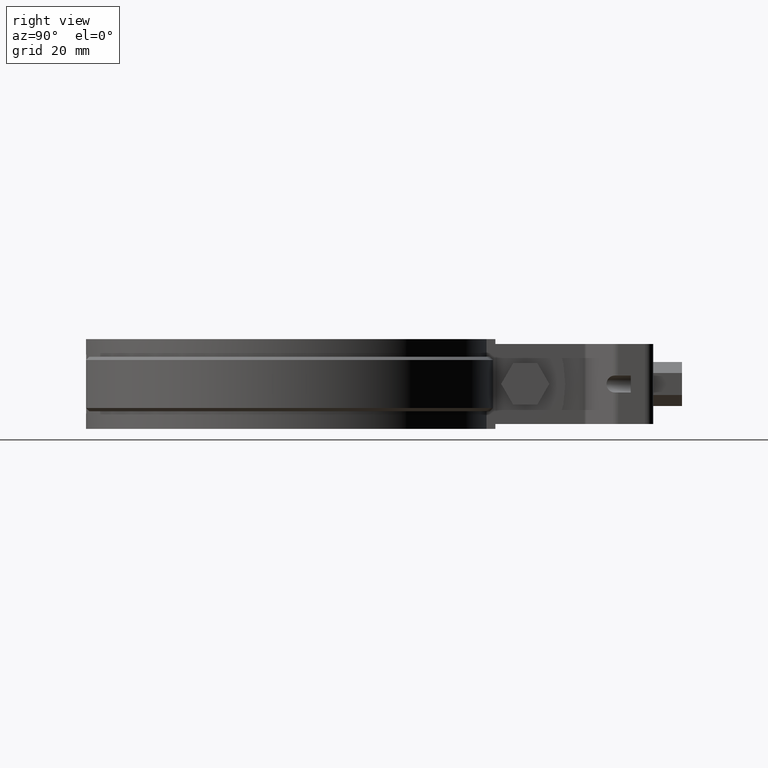
[diagram: clean part render]
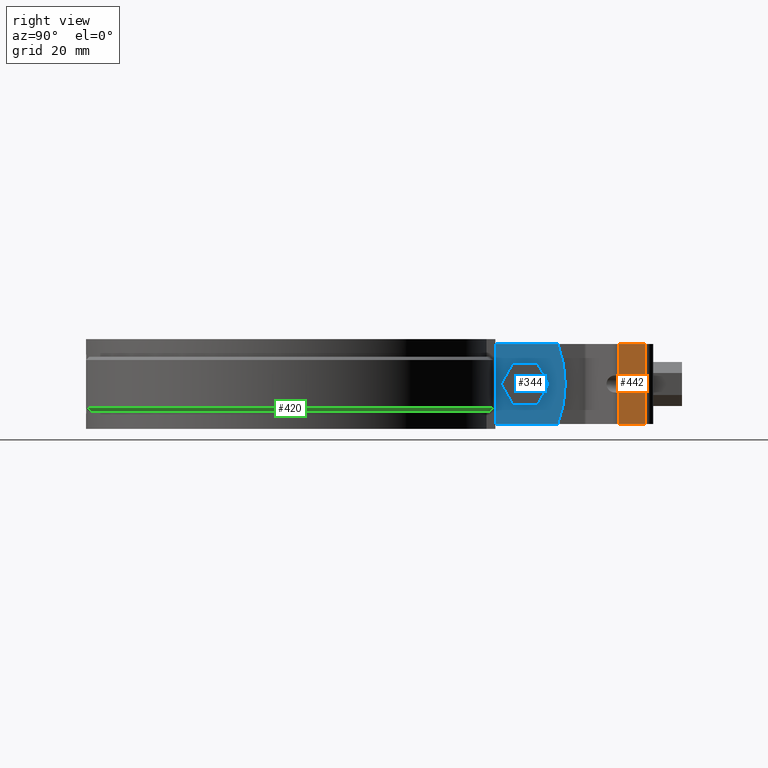
[diagram: same view with three faces highlighted in distinct colors, each labeled with its STEP entity id]
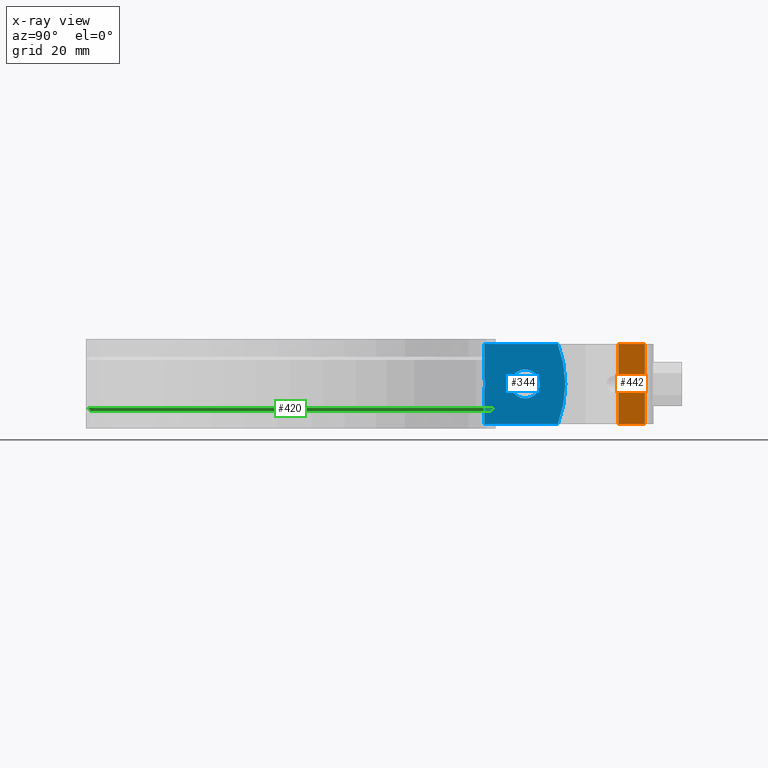
[diagram: x-ray of the same camera — body ghosted, the three highlighted faces saturated]
A machine part, right view with three faces highlighted in distinct colors.
The next image is the same camera in x-ray (body ghosted, the three faces saturated) — at least one of them is partly hidden behind the body in this view.
Their STEP definitions:

[orange] entity #442 — the highlighted planar face has unit normal (1, 0, 0).
#442 = ADVANCED_FACE( '', ( #791 ), #792, .T. );
#791 = FACE_OUTER_BOUND( '', #1793, .T. );
#792 = PLANE( '', #1794 );
#1793 = EDGE_LOOP( '', ( #3520, #3521, #3522, #3523, #3524, #3525, #3526, #3527 ) );
#1794 = AXIS2_PLACEMENT_3D( '', #3528, #3529, #3530 );
#3520 = ORIENTED_EDGE( '', *, *, #4543, .T. );
#3521 = ORIENTED_EDGE( '', *, *, #4544, .T. );
#3522 = ORIENTED_EDGE( '', *, *, #4545, .F. );
#3523 = ORIENTED_EDGE( '', *, *, #4504, .F. );
#3524 = ORIENTED_EDGE( '', *, *, #4541, .T. );
#3525 = ORIENTED_EDGE( '', *, *, #4529, .T. );
#3526 = ORIENTED_EDGE( '', *, *, #4539, .F. );
#3527 = ORIENTED_EDGE( '', *, *, #4525, .F. );
#3528 = CARTESIAN_POINT( '', ( 12.2499999999805, 103.497631763381, 12.4999999990655 ) );
#3529 = DIRECTION( '', ( 1.00000000000000, 2.55394610918241E-013, 1.69013704294046E-013 ) );
#3530 = DIRECTION( '', ( 2.55394610917021E-013, -1.00000000000000, 7.21711579387898E-012 ) );
#4504 = EDGE_CURVE( '', #5302, #5304, #5305, .T. );
#4525 = EDGE_CURVE( '', #5341, #5343, #5344, .T. );
#4529 = EDGE_CURVE( '', #5351, #5349, #5352, .T. );
#4539 = EDGE_CURVE( '', #5343, #5349, #5368, .T. );
#4541 = EDGE_CURVE( '', #5302, #5351, #5370, .T. );
#4543 = EDGE_CURVE( '', #5341, #5372, #5373, .T. );
#4544 = EDGE_CURVE( '', #5372, #5374, #5375, .T. );
#4545 = EDGE_CURVE( '', #5304, #5374, #5376, .T. );
#5302 = VERTEX_POINT( '', #8154 );
#5304 = VERTEX_POINT( '', #8156 );
#5305 = LINE( '', #8157, #8158 );
#5341 = VERTEX_POINT( '', #8204 );
#5343 = VERTEX_POINT( '', #8215 );
#5344 = LINE( '', #8216, #8217 );
#5349 = VERTEX_POINT( '', #8222 );
#5351 = VERTEX_POINT( '', #8224 );
#5352 = LINE( '', #8225, #8226 );
#5368 = LINE( '', #8263, #8264 );
#5370 = LINE( '', #8267, #8268 );
#5372 = VERTEX_POINT( '', #8271 );
#5373 = LINE( '', #8272, #8273 );
#5374 = VERTEX_POINT( '', #8274 );
#5375 = LINE( '', #8275, #8276 );
#5376 = LINE( '', #8277, #8278 );
#8154 = CARTESIAN_POINT( '', ( 12.2499999999805, 103.497631763381, 12.4999999990655 ) );
#8156 = CARTESIAN_POINT( '', ( 12.2499999999783, 111.801825964267, 12.4999999990056 ) );
#8157 = CARTESIAN_POINT( '', ( 12.2499999999805, 103.497631763381, 12.4999999990655 ) );
#8158 = VECTOR( '', #9201, 1000.00000000000 );
#8204 = CARTESIAN_POINT( '', ( 12.2499999999830, 103.497631763272, -2.65000000093443 ) );
#8215 = CARTESIAN_POINT( '', ( 12.2499999999820, 107.401825964157, -2.65000000096260 ) );
#8216 = CARTESIAN_POINT( '', ( 12.2499999999846, 97.4018259641571, -2.65000000089044 ) );
#8217 = VECTOR( '', #9239, 1000.00000000000 );
#8222 = CARTESIAN_POINT( '', ( 12.2499999999811, 107.401825964195, 2.64999999903734 ) );
#8224 = CARTESIAN_POINT( '', ( 12.2499999999821, 103.497631763310, 2.64999999906551 ) );
#8225 = CARTESIAN_POINT( '', ( 12.2499999999837, 97.4018259641954, 2.64999999910950 ) );
#8226 = VECTOR( '', #9249, 1000.00000000000 );
#8263 = CARTESIAN_POINT( '', ( 12.2499999999823, 107.401825964146, -4.25000000096260 ) );
#8264 = VECTOR( '', #9260, 1000.00000000000 );
#8267 = CARTESIAN_POINT( '', ( 12.2499999999805, 103.497631763381, 12.4999999990655 ) );
#8268 = VECTOR( '', #9262, 1000.00000000000 );
#8271 = CARTESIAN_POINT( '', ( 12.2499999999847, 103.497631763200, -12.5000000009345 ) );
#8272 = CARTESIAN_POINT( '', ( 12.2499999999805, 103.497631763381, 12.4999999990655 ) );
#8273 = VECTOR( '', #9264, 1000.00000000000 );
#8274 = CARTESIAN_POINT( '', ( 12.2499999999826, 111.801825964086, -12.5000000009944 ) );
#8275 = CARTESIAN_POINT( '', ( 12.2499999999847, 103.497631763200, -12.5000000009345 ) );
#8276 = VECTOR( '', #9265, 1000.00000000000 );
#8277 = CARTESIAN_POINT( '', ( 12.2499999999783, 111.801825964267, 12.4999999990056 ) );
#8278 = VECTOR( '', #9266, 1000.00000000000 );
#9201 = DIRECTION( '', ( -2.55394610917021E-013, 1.00000000000000, -7.21711579387898E-012 ) );
#9239 = DIRECTION( '', ( -2.55394610917021E-013, 1.00000000000000, -7.21711579387898E-012 ) );
#9249 = DIRECTION( '', ( -2.55394610917021E-013, 1.00000000000000, -7.21711579387898E-012 ) );
#9260 = DIRECTION( '', ( -1.69011853759909E-013, 7.21711579387894E-012, 1.00000000000000 ) );
#9262 = DIRECTION( '', ( 1.69013704295889E-013, -7.21711579387894E-012, -1.00000000000000 ) );
#9264 = DIRECTION( '', ( 1.69013704295889E-013, -7.21711579387894E-012, -1.00000000000000 ) );
#9265 = DIRECTION( '', ( -2.55394610917021E-013, 1.00000000000000, -7.21711579387898E-012 ) );
#9266 = DIRECTION( '', ( 1.69013704295889E-013, -7.21711579387894E-012, -1.00000000000000 ) );

[blue] entity #344 — the highlighted planar face has unit normal (1, 0, 0).
#344 = ADVANCED_FACE( '', ( #588, #589 ), #590, .T. );
#588 = FACE_OUTER_BOUND( '', #1223, .T. );
#589 = FACE_BOUND( '', #1224, .T. );
#590 = PLANE( '', #1225 );
#1223 = EDGE_LOOP( '', ( #2633, #2634, #2635, #2636, #2637, #2638 ) );
#1224 = EDGE_LOOP( '', ( #2639 ) );
#1225 = AXIS2_PLACEMENT_3D( '', #2640, #2641, #2642 );
#2633 = ORIENTED_EDGE( '', *, *, #4263, .F. );
#2634 = ORIENTED_EDGE( '', *, *, #4260, .F. );
#2635 = ORIENTED_EDGE( '', *, *, #4264, .T. );
#2636 = ORIENTED_EDGE( '', *, *, #4265, .T. );
#2637 = ORIENTED_EDGE( '', *, *, #4266, .F. );
#2638 = ORIENTED_EDGE( '', *, *, #4236, .F. );
#2639 = ORIENTED_EDGE( '', *, *, #4253, .T. );
#2640 = CARTESIAN_POINT( '', ( 5.00000000000000, 61.7545342464827, -12.5000000000000 ) );
#2641 = DIRECTION( '', ( 1.00000000000000, 6.16283340149655E-017, 0.000000000000000 ) );
#2642 = DIRECTION( '', ( 6.16283340149655E-017, -1.00000000000000, 0.000000000000000 ) );
#4236 = EDGE_CURVE( '', #4872, #4874, #4875, .T. );
#4253 = EDGE_CURVE( '', #4893, #4893, #4894, .F. );
#4260 = EDGE_CURVE( '', #4901, #4899, #4903, .T. );
#4263 = EDGE_CURVE( '', #4899, #4872, #4906, .T. );
#4264 = EDGE_CURVE( '', #4901, #4907, #4908, .T. );
#4265 = EDGE_CURVE( '', #4907, #4909, #4910, .T. );
#4266 = EDGE_CURVE( '', #4874, #4909, #4911, .T. );
#4872 = VERTEX_POINT( '', #6693 );
#4874 = VERTEX_POINT( '', #6710 );
#4875 = LINE( '', #6711, #6712 );
#4893 = VERTEX_POINT( '', #6861 );
#4894 = CIRCLE( '', #6862, 4.50000000000003 );
#4899 = VERTEX_POINT( '', #6901 );
#4901 = VERTEX_POINT( '', #6918 );
#4903 = LINE( '', #6920, #6921 );
#4906 = B_SPLINE_CURVE_WITH_KNOTS( '', 3, ( #6924, #6925, #6926, #6927, #6928, #6929, #6930, #6931 ), .UNSPECIFIED., .F., .F., ( 4, 2, 2, 4 ), ( 2.81892564846231E-018, 0.00149837378309851, 0.00224756067464777, 0.00299674756619702 ), .UNSPECIFIED. );
#4907 = VERTEX_POINT( '', #6932 );
#4908 = LINE( '', #6933, #6934 );
#4909 = VERTEX_POINT( '', #6935 );
#4910 = CIRCLE( '', #6936, 35.0000000000002 );
#4911 = LINE( '', #6937, #6938 );
#6693 = CARTESIAN_POINT( '', ( 5.00000000000000, 61.7545342464827, 1.49291615203444 ) );
#6710 = CARTESIAN_POINT( '', ( 5.00000000000000, 61.7545342464827, 12.5000000000000 ) );
#6711 = CARTESIAN_POINT( '', ( 5.00000000000000, 61.7545342464827, -12.5000000000000 ) );
#6712 = VECTOR( '', #8839, 1000.00000000000 );
#6861 = CARTESIAN_POINT( '', ( 5.00000000000000, 78.9418259648468, -5.55111512312578E-014 ) );
#6862 = AXIS2_PLACEMENT_3D( '', #8854, #8855, #8856 );
#6901 = CARTESIAN_POINT( '', ( 5.00000000000000, 61.7545342464827, -1.49291615203031 ) );
#6918 = CARTESIAN_POINT( '', ( 5.00000000000000, 61.7545342464827, -12.5000000000000 ) );
#6920 = CARTESIAN_POINT( '', ( 5.00000000000000, 61.7545342464827, -12.5000000000000 ) );
#6921 = VECTOR( '', #8860, 1000.00000000000 );
#6924 = CARTESIAN_POINT( '', ( 5.00000000000000, 61.7545342464827, -1.49291615203031 ) );
#6925 = CARTESIAN_POINT( '', ( 5.00000000000000, 61.8820440775209, -1.00264306649015 ) );
#6926 = CARTESIAN_POINT( '', ( 4.99999999999999, 61.9470027373306, -0.506944265545392 ) );
#6927 = CARTESIAN_POINT( '', ( 4.99999999999999, 61.9477448830672, 0.244991374826583 ) );
#6928 = CARTESIAN_POINT( '', ( 4.99999999999999, 61.9313736301201, 0.498454618103391 ) );
#6929 = CARTESIAN_POINT( '', ( 4.99999999999999, 61.8665441762539, 0.999736569771112 ) );
#6930 = CARTESIAN_POINT( '', ( 4.99999999999999, 61.8183196193486, 1.24766250129485 ) );
#6931 = CARTESIAN_POINT( '', ( 5.00000000000000, 61.7545342464827, 1.49291615203445 ) );
#6932 = CARTESIAN_POINT( '', ( 5.00000000000000, 84.6335680414011, -12.5000000000000 ) );
#6933 = CARTESIAN_POINT( '', ( 5.00000000000000, 61.7545342464827, -12.5000000000000 ) );
#6934 = VECTOR( '', #8867, 1000.00000000000 );
#6935 = CARTESIAN_POINT( '', ( 5.00000000000078, 84.6335680414015, 12.5000000000000 ) );
#6936 = AXIS2_PLACEMENT_3D( '', #8868, #8869, #8870 );
#6937 = CARTESIAN_POINT( '', ( 5.00000000000000, 61.7545342464827, 12.5000000000000 ) );
#6938 = VECTOR( '', #8871, 1000.00000000000 );
#8839 = DIRECTION( '', ( 0.000000000000000, 0.000000000000000, 1.00000000000000 ) );
#8854 = CARTESIAN_POINT( '', ( 5.00000000000000, 74.4418259648468, -5.55111512312578E-014 ) );
#8855 = DIRECTION( '', ( 1.00000000000000, 6.16283340149655E-017, 0.000000000000000 ) );
#8856 = DIRECTION( '', ( -6.16283340149655E-017, 1.00000000000000, 0.000000000000000 ) );
#8860 = DIRECTION( '', ( 0.000000000000000, 0.000000000000000, 1.00000000000000 ) );
#8867 = DIRECTION( '', ( -6.16283340149654E-017, 1.00000000000000, 0.000000000000000 ) );
#8868 = CARTESIAN_POINT( '', ( 5.00000000000003, 51.9418259648460, 4.44089209850063E-013 ) );
#8869 = DIRECTION( '', ( 1.00000000000000, 6.16283340149655E-017, 0.000000000000000 ) );
#8870 = DIRECTION( '', ( -6.16283340149655E-017, 1.00000000000000, 0.000000000000000 ) );
#8871 = DIRECTION( '', ( -6.16283340149654E-017, 1.00000000000000, 0.000000000000000 ) );

[green] entity #420 — the highlighted conical surface has half-angle 45 deg.
#420 = ADVANCED_FACE( '', ( #746 ), #747, .T. );
#746 = FACE_OUTER_BOUND( '', #1638, .T. );
#747 = CONICAL_SURFACE( '', #1639, 63.6500000000000, 0.785398163397449 );
#1638 = EDGE_LOOP( '', ( #3330, #3331, #3332, #3333 ) );
#1639 = AXIS2_PLACEMENT_3D( '', #3334, #3335, #3336 );
#3330 = ORIENTED_EDGE( '', *, *, #4406, .F. );
#3331 = ORIENTED_EDGE( '', *, *, #4456, .F. );
#3332 = ORIENTED_EDGE( '', *, *, #4477, .F. );
#3333 = ORIENTED_EDGE( '', *, *, #4467, .F. );
#3334 = CARTESIAN_POINT( '', ( 4.33680868994202E-015, 5.55111512312578E-014, -8.50000000000000 ) );
#3335 = DIRECTION( '', ( 0.000000000000000, 0.000000000000000, 1.00000000000000 ) );
#3336 = DIRECTION( '', ( 1.00000000000000, 0.000000000000000, 0.000000000000000 ) );
#4406 = EDGE_CURVE( '', #5147, #5150, #5151, .T. );
#4456 = EDGE_CURVE( '', #5226, #5147, #5228, .T. );
#4467 = EDGE_CURVE( '', #5150, #5241, #5245, .F. );
#4477 = EDGE_CURVE( '', #5241, #5226, #5257, .T. );
#5147 = VERTEX_POINT( '', #7911 );
#5150 = VERTEX_POINT( '', #7915 );
#5151 = B_SPLINE_CURVE_WITH_KNOTS( '', 3, ( #7916, #7917, #7918, #7919 ), .UNSPECIFIED., .F., .F., ( 4, 4 ), ( 1.55158384577955E-017, 0.00141733050374559 ), .UNSPECIFIED. );
#5226 = VERTEX_POINT( '', #8040 );
#5228 = CIRCLE( '', #8043, 64.6500000000000 );
#5241 = VERTEX_POINT( '', #8062 );
#5245 = CIRCLE( '', #8067, 63.6500000000000 );
#5257 = LINE( '', #8086, #8087 );
#7911 = CARTESIAN_POINT( '', ( 6.00000000000001, 64.3709756023629, -7.50000000000000 ) );
#7915 = CARTESIAN_POINT( '', ( 6.00000000000001, 63.3665724179556, -8.50000000000000 ) );
#7916 = CARTESIAN_POINT( '', ( 6.00000000000001, 64.3709756023630, -7.50000000000000 ) );
#7917 = CARTESIAN_POINT( '', ( 6.00000000000001, 64.0361859169225, -7.83334475906281 ) );
#7918 = CARTESIAN_POINT( '', ( 6.00000000000001, 63.7013850345734, -8.16667827309721 ) );
#7919 = CARTESIAN_POINT( '', ( 6.00000000000001, 63.3665724179556, -8.49999999999999 ) );
#8040 = CARTESIAN_POINT( '', ( 18.1643848332456, -62.0457703927492, -7.50000000000000 ) );
#8043 = AXIS2_PLACEMENT_3D( '', #9122, #9123, #9124 );
#8062 = CARTESIAN_POINT( '', ( 17.8834198706277, -61.0860523665659, -8.50000000000000 ) );
#8067 = AXIS2_PLACEMENT_3D( '', #9141, #9142, #9143 );
#8086 = CARTESIAN_POINT( '', ( 17.8834198706277, -61.0860523665659, -8.50000000000000 ) );
#8087 = VECTOR( '', #9157, 1000.00000000000 );
#9122 = CARTESIAN_POINT( '', ( 4.33680868994202E-015, 5.55111512312578E-014, -7.50000000000000 ) );
#9123 = DIRECTION( '', ( 0.000000000000000, 0.000000000000000, 1.00000000000000 ) );
#9124 = DIRECTION( '', ( 1.00000000000000, 0.000000000000000, 0.000000000000000 ) );
#9141 = CARTESIAN_POINT( '', ( 4.33680868994202E-015, 5.55111512312578E-014, -8.50000000000000 ) );
#9142 = DIRECTION( '', ( 0.000000000000000, 0.000000000000000, 1.00000000000000 ) );
#9143 = DIRECTION( '', ( 1.00000000000000, 0.000000000000000, 0.000000000000000 ) );
#9157 = DIRECTION( '', ( 0.198672230342924, -0.678623124341163, 0.707106781186552 ) );